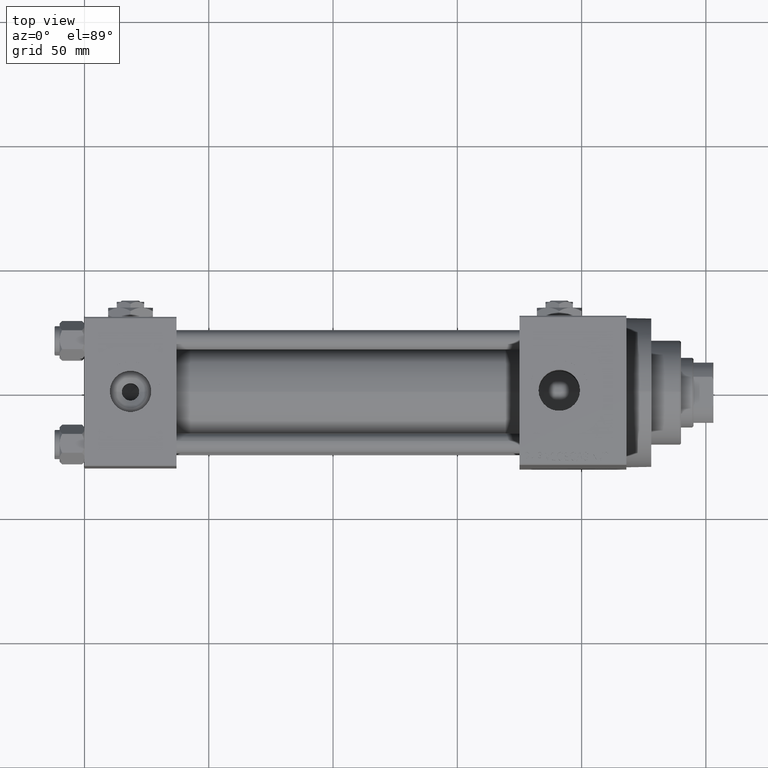
[diagram: clean part render]
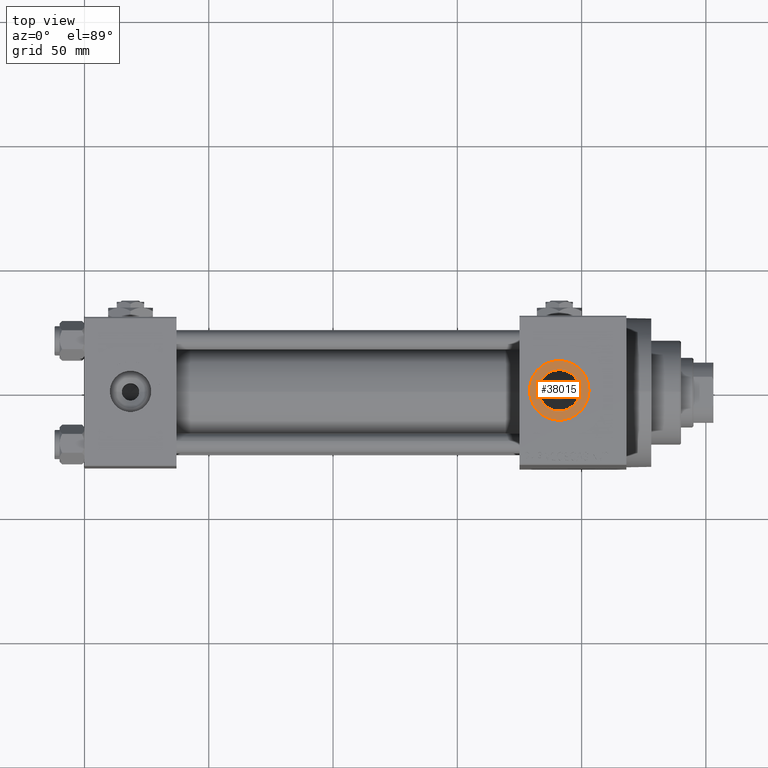
[diagram: same view with one face highlighted and labeled with its STEP entity id]
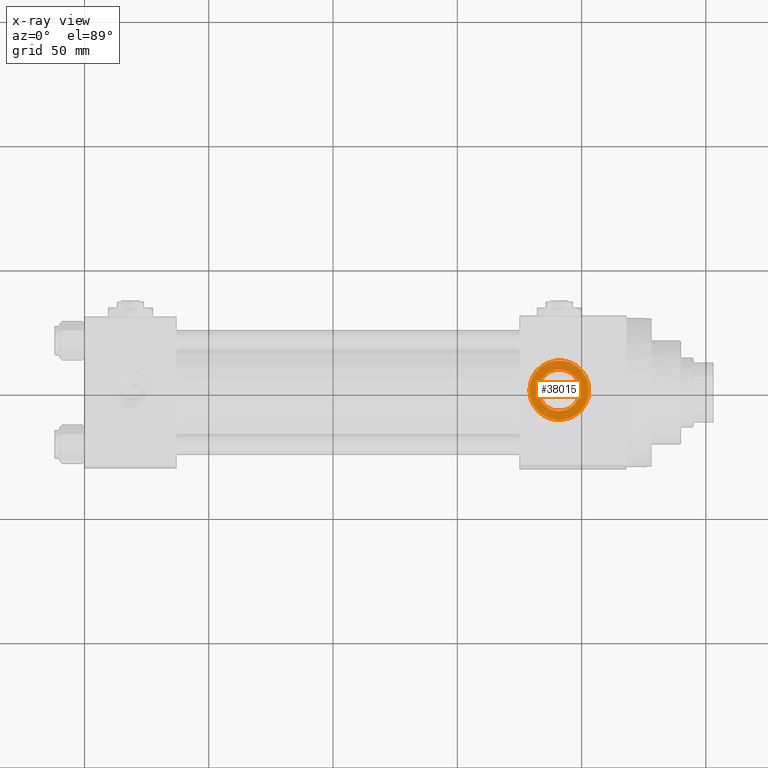
[diagram: x-ray of the same camera — body ghosted, the highlighted face saturated]
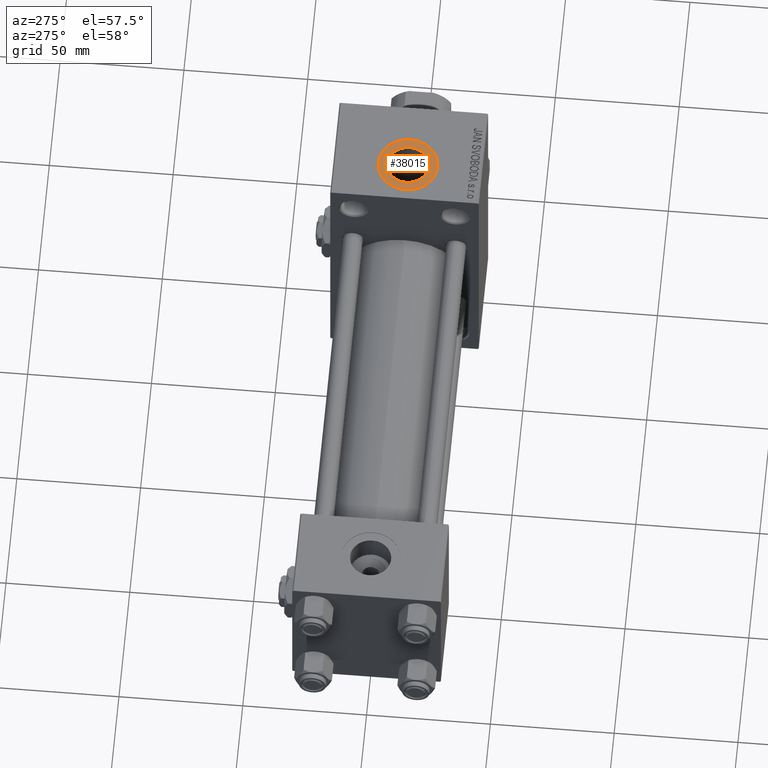
[diagram: same view with one face highlighted and labeled with its STEP entity id]
A machine part, top view. The second image highlights one B-rep face of the part: STEP entity #38015.
The next image is the same camera in x-ray: the body ghosted, the highlighted face saturated — about 0% of this face is hidden behind the body in this view.
A second angle (auxiliary view) of the same face is appended — the face is thin or edge-on in the first view.
In plain terms, the highlighted planar face has unit normal (0, 0, 1).
Its self-contained STEP definition (entity closure, byte-faithful):
#1034 = EDGE_LOOP ( 'NONE', ( #39352, #17260 ) ) ;
#5811 = VERTEX_POINT ( 'NONE', #40704 ) ;
#8374 = EDGE_LOOP ( 'NONE', ( #29700, #21362 ) ) ;
#9335 = FACE_OUTER_BOUND ( 'NONE', #8374, .T. ) ;
#10732 = CARTESIAN_POINT ( 'NONE',  ( 182.6699999999999875, 6.302828629382400162E-15, 54.29999999999999716 ) ) ;
#11225 = DIRECTION ( 'NONE',  ( 1.000000000000000000, 0.000000000000000000, 0.000000000000000000 ) ) ;
#12582 = CARTESIAN_POINT ( 'NONE',  ( 203.0000000000000000, 6.302828629382399373E-15, 54.29999999999999716 ) ) ;
#12824 = DIRECTION ( 'NONE',  ( 1.000000000000000000, 0.000000000000000000, 0.000000000000000000 ) ) ;
#13164 = CARTESIAN_POINT ( 'NONE',  ( 199.3300000000000125, 7.322959413072145713E-15, 54.29999999999999716 ) ) ;
#14529 = CIRCLE ( 'NONE', #21747, 12.00000000000001066 ) ;
#15741 = CARTESIAN_POINT ( 'NONE',  ( 191.0000000000000000, 6.302828629382400162E-15, 54.29999999999999716 ) ) ;
#16235 = VERTEX_POINT ( 'NONE', #10732 ) ;
#16576 = AXIS2_PLACEMENT_3D ( 'NONE', #35925, #36663, #47950 ) ;
#17260 = ORIENTED_EDGE ( 'NONE', *, *, #49528, .T. ) ;
#17351 = FACE_BOUND ( 'NONE', #1034, .T. ) ;
#19267 = AXIS2_PLACEMENT_3D ( 'NONE', #31880, #47166, #12824 ) ;
#21362 = ORIENTED_EDGE ( 'NONE', *, *, #24682, .T. ) ;
#21747 = AXIS2_PLACEMENT_3D ( 'NONE', #47900, #44391, #40129 ) ;
#22746 = CIRCLE ( 'NONE', #34795, 8.330000000000003624 ) ;
#24614 = DIRECTION ( 'NONE',  ( 1.000000000000000000, 0.000000000000000000, 0.000000000000000000 ) ) ;
#24682 = EDGE_CURVE ( 'NONE', #5811, #42884, #14529, .T. ) ;
#24865 = CARTESIAN_POINT ( 'NONE',  ( 191.0000000000000000, 6.302828629382399373E-15, 54.29999999999999716 ) ) ;
#26445 = CIRCLE ( 'NONE', #19267, 8.330000000000003624 ) ;
#27711 = AXIS2_PLACEMENT_3D ( 'NONE', #24865, #43667, #24614 ) ;
#28132 = VERTEX_POINT ( 'NONE', #13164 ) ;
#29700 = ORIENTED_EDGE ( 'NONE', *, *, #36525, .T. ) ;
#30551 = DIRECTION ( 'NONE',  ( -0.000000000000000000, -0.000000000000000000, -1.000000000000000000 ) ) ;
#31880 = CARTESIAN_POINT ( 'NONE',  ( 191.0000000000000000, 6.302828629382400162E-15, 54.29999999999999716 ) ) ;
#32505 = CIRCLE ( 'NONE', #27711, 12.00000000000001066 ) ;
#33194 = EDGE_CURVE ( 'NONE', #16235, #28132, #22746, .T. ) ;
#34795 = AXIS2_PLACEMENT_3D ( 'NONE', #15741, #30551, #11225 ) ;
#35925 = CARTESIAN_POINT ( 'NONE',  ( 191.0000000000000000, 6.302828629382399373E-15, 54.29999999999999716 ) ) ;
#36525 = EDGE_CURVE ( 'NONE', #42884, #5811, #32505, .T. ) ;
#36663 = DIRECTION ( 'NONE',  ( 0.000000000000000000, 0.000000000000000000, 1.000000000000000000 ) ) ;
#38015 = ADVANCED_FACE ( 'NONE', ( #17351, #9335 ), #47456, .T. ) ;
#39352 = ORIENTED_EDGE ( 'NONE', *, *, #33194, .T. ) ;
#40129 = DIRECTION ( 'NONE',  ( 1.000000000000000000, 0.000000000000000000, 0.000000000000000000 ) ) ;
#40704 = CARTESIAN_POINT ( 'NONE',  ( 179.0000000000000000, 7.772404788359223517E-15, 54.29999999999999716 ) ) ;
#42884 = VERTEX_POINT ( 'NONE', #12582 ) ;
#43667 = DIRECTION ( 'NONE',  ( 0.000000000000000000, 0.000000000000000000, 1.000000000000000000 ) ) ;
#44391 = DIRECTION ( 'NONE',  ( 0.000000000000000000, 0.000000000000000000, 1.000000000000000000 ) ) ;
#47166 = DIRECTION ( 'NONE',  ( -0.000000000000000000, -0.000000000000000000, -1.000000000000000000 ) ) ;
#47456 = PLANE ( 'NONE',  #16576 ) ;
#47900 = CARTESIAN_POINT ( 'NONE',  ( 191.0000000000000000, 6.302828629382399373E-15, 54.29999999999999716 ) ) ;
#47950 = DIRECTION ( 'NONE',  ( 1.000000000000000000, 0.000000000000000000, -0.000000000000000000 ) ) ;
#49528 = EDGE_CURVE ( 'NONE', #28132, #16235, #26445, .T. ) ;